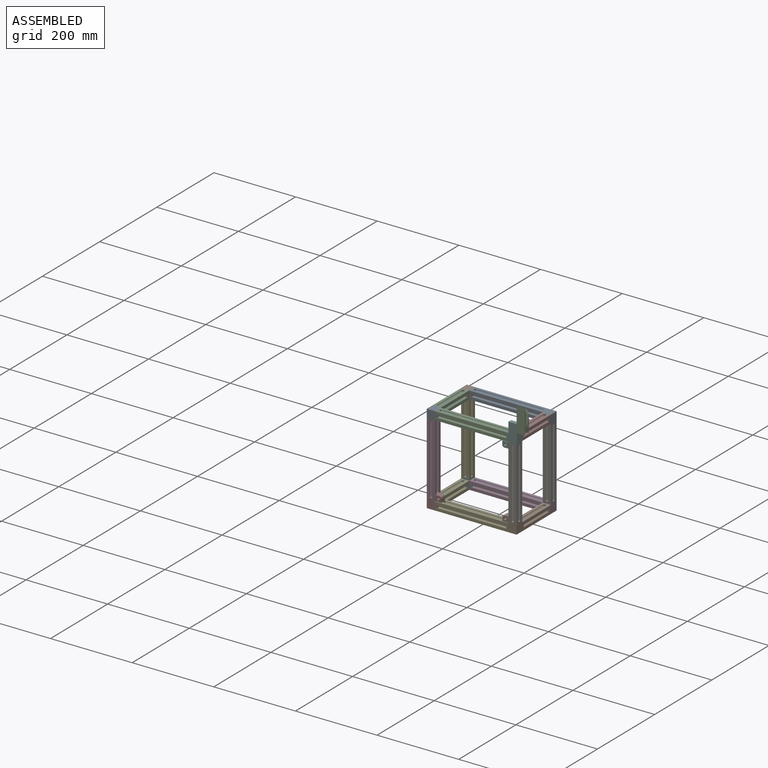
[diagram: assembled view]
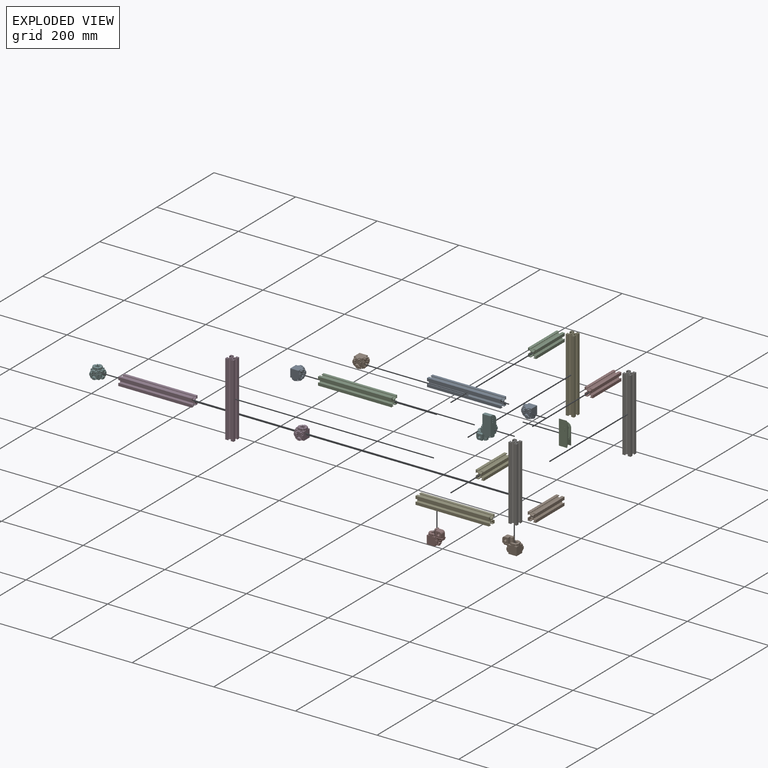
[diagram: exploded view]
GUIDED TOUR — MATED ASSEMBLY WITH SUBASSEMBLIES (Onshape document 5849f3f1650a1f40a9df41c4, AutoMate assembly 5849f3f1650a1f40a9df41c4_9b9f83bd9ccc5ef26c522021_66006c5635cd6fd07002afb1_default)

This assembly has 24 component occurrences arranged in 21 top-level units: 20 individual components plus 1 subassembly (S0). The tour has two levels: first the top level, where each subassembly is treated as one rigid unit; then each subassembly is toured internally in its own section (nesting deeper than one subassembly level is flattened into its subassembly's section).

Components are labeled P0..P23 across the whole record; subassembly units are labeled S0..S0. A mate is a constraint between two units; its type names the relative motion it leaves free:
  FASTENED — locks the two components together rigidly (no relative motion).
Axis/direction vectors are unit vectors and 'through' points are millimeter coordinates, both in the assembly's world frame.

TOP-LEVEL MATES (between units; each subassembly's internal mates are listed in its own section)
  1. FASTENED "Fastened 3": P4 <-> P7, direction (-1.000, 0.000, 0.000) through (-31.31, -10.00, -54.85) mm
  2. FASTENED "Fastened 9": P15 <-> P16, direction (0.000, -1.000, 0.000) through (-31.31, 110.00, 125.15) mm
  3. FASTENED "Fastened 15": P9 <-> P21, direction (1.000, 0.000, 0.000) through (-211.31, -10.00, 145.15) mm
  4. FASTENED "Fastened 11": P17 <-> P16, direction (0.000, -1.000, 0.000) through (-31.31, 110.00, 145.15) mm
  5. FASTENED "Fastened 4": P1 <-> P4, direction (0.000, -1.000, 0.000) through (-31.31, 10.00, -54.85) mm
  6. FASTENED "Fastened 12": P5 <-> P7, direction (0.000, 0.000, -1.000) through (-11.31, 10.00, 125.15) mm
  7. FASTENED "Fastened 17": P3 <-> P22, direction (-1.000, 0.000, 0.000) through (-31.31, 130.00, -74.85) mm
  8. FASTENED "Fastened 19": P18 <-> P17, direction (1.000, 0.000, 0.000) through (-211.31, 130.00, 145.15) mm
  9. FASTENED "Fastened 14": P8 <-> P12, direction (0.000, 0.000, 1.000) through (-231.31, -10.00, -54.85) mm
  10. FASTENED "Fastened 2": P21 <-> P12, direction (1.000, 0.000, 0.000) through (-211.31, -10.00, 125.15) mm
  11. FASTENED "Fastened 7": P4 <-> P23, direction (0.000, 1.000, 0.000) through (-211.31, 10.00, -54.85) mm
  12. FASTENED "Fastened 10": P22 <-> P23, direction (0.000, -1.000, 0.000) through (-211.31, 110.00, -74.85) mm
  13. FASTENED "Fastened 16": S0 <-> P5, direction (1.000, 0.000, 0.000) through (-11.31, -2.50, 167.65) mm
  14. FASTENED "Fastened 6": P11 <-> P21, direction (0.000, -1.000, 0.000) through (-211.31, 10.00, 125.15) mm
  15. FASTENED "Fastened 20": P0 <-> P17, direction (-1.000, 0.000, 0.000) through (-31.31, 130.00, 145.15) mm
  16. FASTENED "Fastened 18": P14 <-> P22, direction (1.000, 0.000, 0.000) through (-211.31, 130.00, -74.85) mm
  17. FASTENED "Fastened 8": P13 <-> P11, direction (0.000, -1.000, 0.000) through (-211.31, 110.00, 125.15) mm
  18. FASTENED "Fastened 1": P21 <-> P7, direction (1.000, 0.000, 0.000) through (-31.31, -10.00, 125.15) mm
  19. FASTENED "Fastened 5": P16 <-> P7, direction (0.000, -1.000, 0.000) through (-31.31, 10.00, 125.15) mm
  20. FASTENED "Fastened 13": P10 <-> P7, direction (0.000, 0.000, 1.000) through (-11.31, -10.00, -54.85) mm

TOP-LEVEL ASSEMBLY ORDER
  1. P7 — the base component [order heuristic]
  2. P4 — core [order heuristic]
  3. P0 — core [order heuristic]
  4. P10 — core [order heuristic]
  5. P16 — core [order heuristic]
  6. P5 — core [order heuristic]
  7. P1 — core [order heuristic]
  8. P17 — core [order heuristic]
  9. P11 — core [order heuristic]
  10. P21 — core [order heuristic]
  11. P15 — core [order heuristic]
  12. P9 — core [order heuristic]
  13. P23 — core [order heuristic]
  14. P18 — core [order heuristic]
  15. P8 — core [order heuristic]
  16. P13 — core [order heuristic]
  17. P12 — core [order heuristic]
  18. P22 — core [order heuristic]
  19. P14 — core [order heuristic]
  20. P3 — core [order heuristic]
  21. S0 [order verified]
Order-tag legend:
  [order verified] — this step's position reverses a verified removal order: the component was checked to insert without passing through the ones already placed.
  [order heuristic] — the first 20 components form the assembly's core: parts whose collision-free extraction could not be verified, listed in mate-graph order.

Of the 24 component occurrences, 15 carry the full construction recipe — the FeatureScript program that regenerates the part's solid from scratch; the rest are supplied as boundary geometry only. Each toured unit is shown spotlighted twice — assembled, then exploded with a leader line back to its socket (green = recipe-attached component, orange = geometry-only, blue = subassembly unit; the rest desaturated gray).
NOTE — this tour is split across 2 documents so each fits a 32k-token context. This is document 1: the component sections continue in the remaining 1 document, each repeating the header above.
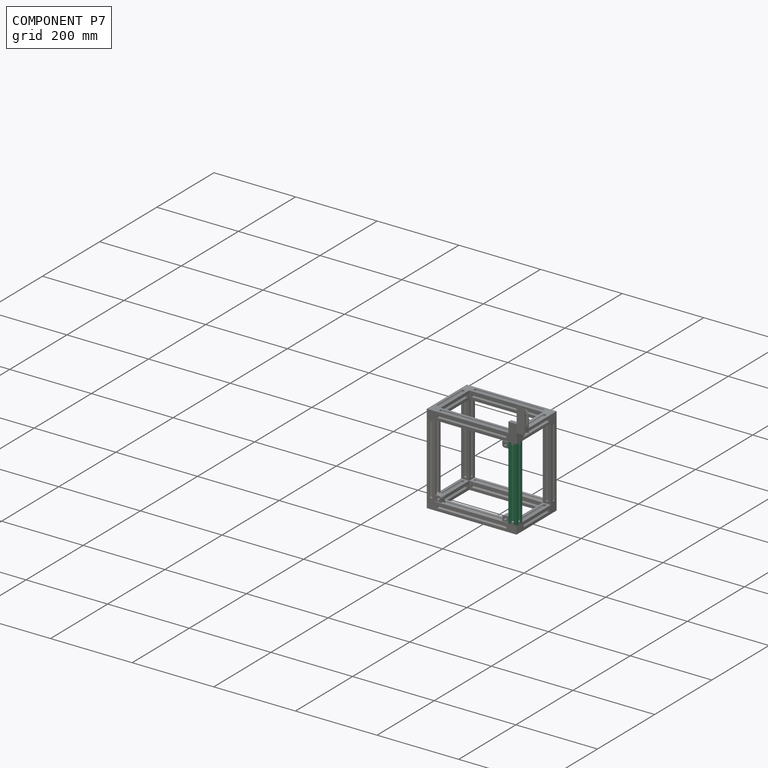
[diagram: component P7 — assembled]
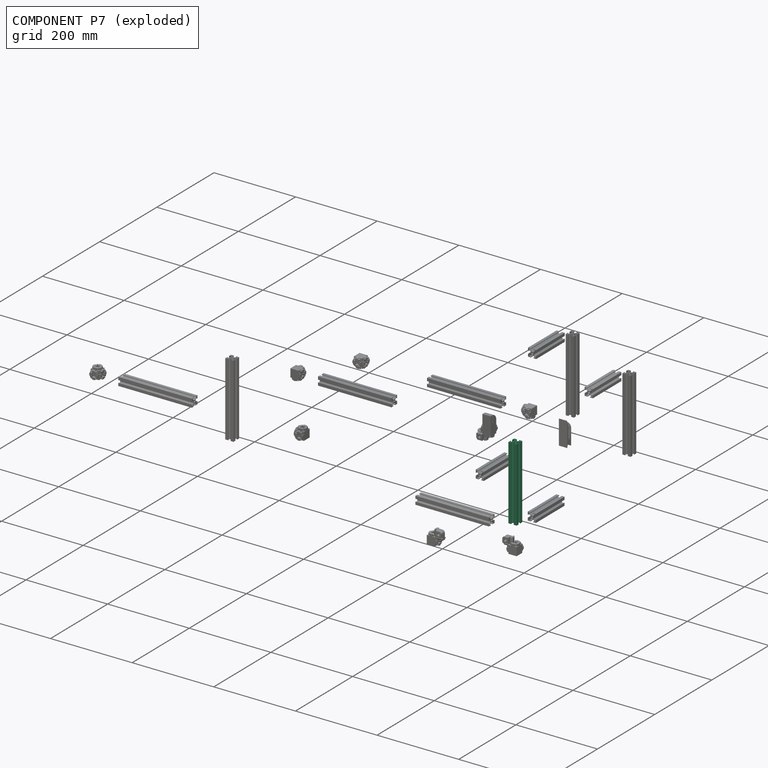
[diagram: component P7 — exploded]
COMPONENT P7 — same part as P4 (CADFS 00642222); its construction recipe is shown at P4.
Held by: FASTENED mate "Fastened 3" to P4; FASTENED mate "Fastened 12" to P5; FASTENED mate "Fastened 1" to P21; FASTENED mate "Fastened 5" to P16; FASTENED mate "Fastened 13" to P10.
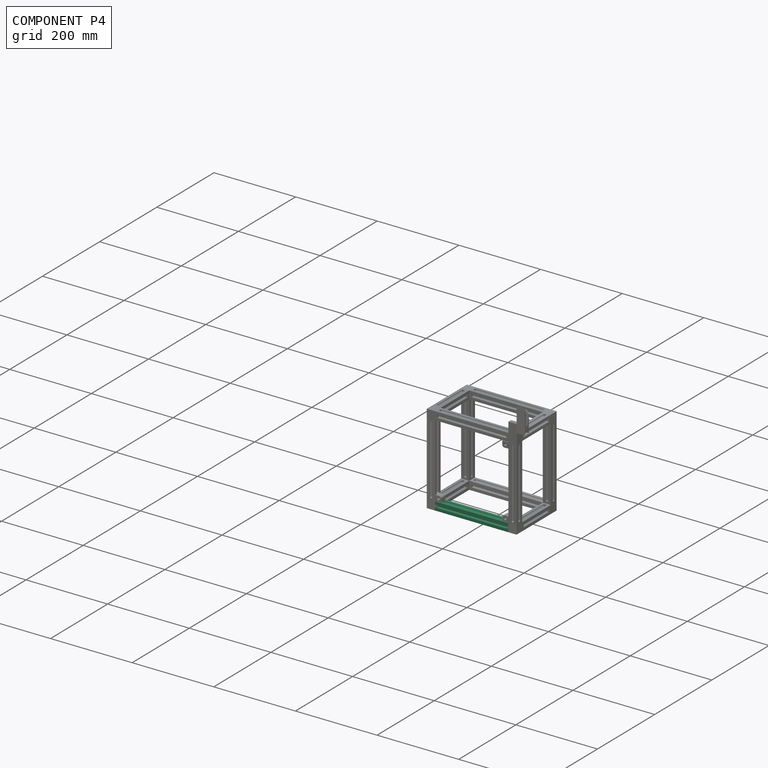
[diagram: component P4 — assembled]
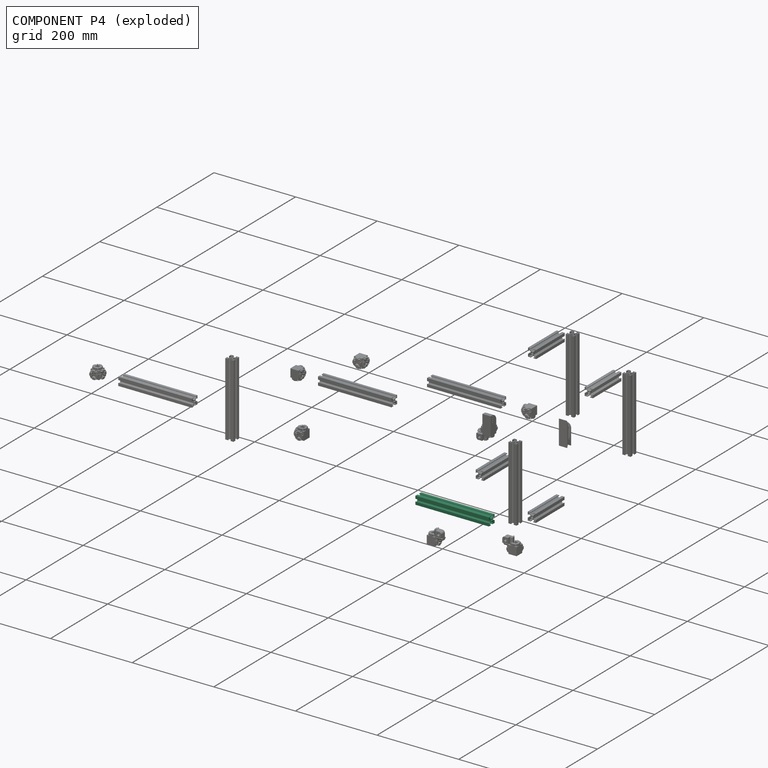
[diagram: component P4 — exploded]
COMPONENT P4 — recipe-attached (CADFS 00642222, mesh-verified: the recipe's output STEP matches this component's geometry to below the mesh-comparison resolution (tessellation chordal tolerance ~0.273 mm)).
Held by: FASTENED mate "Fastened 3" to P7; FASTENED mate "Fastened 4" to P1; FASTENED mate "Fastened 7" to P23.
Construction recipe (FeatureScript — the CAD program that rebuilds this solid; sketch coordinates are in the units given by the * unit suffixes, e.g. mm):

FeatureScript 1511;
import(path : "onshape/std/geometry.fs", version : "1511.0");
import(path : "onshape/std/common.fs", version : "1511.0");
const mm = millimeter;
const VERTEX = EntityType.VERTEX;
const EDGE = EntityType.EDGE;
const FACE = EntityType.FACE;
const BODY = EntityType.BODY;
function v(x, y){return vector(x, y);}
function OD(order){return orderDisambiguation(order);}
function OSD(set){return originalSetDisambiguation(set);}
function TD(topology){return topologyDisambiguation(topology);}
function TDD(query){return trueDependencyDisambiguation(query);}
function sQuery(a, b, c) {return sketchEntityQuery(a, b, c);}

annotation { "Feature Type Name" : "Feature", "Feature Type Description" : "" }
export const myFeature = defineFeature(function(context is Context, id is Id, definition is map)
    precondition{}
    {
        {
            var Q0;
            Q0=qCreatedBy(makeId("Top.planeOp"),FACE);
            var sketch = newSketch(context, id + "F0", { "sketchPlane" : qUnion([Q0])});
            skCircle(sketch, "E0", {"center": v(10, 10) * mm, "radius": 2.5 * mm});
            skLineSegment(sketch, "E1", {"start": v(0, 0) * mm, "end": v(10, 10) * mm, "construction": true});
            skLineSegment(sketch, "E2", {"start": v(1.4, 2.39) * mm, "end": v(1.4, 6.8) * mm});
            skLineSegment(sketch, "E3", {"start": v(1.4, 6.8) * mm, "end": v(0, 6.8) * mm});
            skLineSegment(sketch, "E4", {"start": v(0, 6.8) * mm, "end": v(0, 0) * mm});
            skLineSegment(sketch, "E5", {"start": v(7.49, 6.5) * mm, "end": v(2.39, 1.4) * mm});
            skLineSegment(sketch, "E6", {"start": v(2.39, 1.4) * mm, "end": v(6.8, 1.4) * mm});
            skLineSegment(sketch, "E7", {"start": v(6.8, 1.4) * mm, "end": v(6.8, 0) * mm});
            skLineSegment(sketch, "E8", {"start": v(6.8, 0) * mm, "end": v(0, 0) * mm});
            skLineSegment(sketch, "E9", {"start": v(10, 10) * mm, "end": v(20, 20) * mm, "construction": true});
            skLineSegment(sketch, "E10", {"start": v(10, 10) * mm, "end": v(0, 20) * mm, "construction": true});
            skLineSegment(sketch, "E11", {"start": v(10, 10) * mm, "end": v(20, 0) * mm, "construction": true});
            skLineSegment(sketch, "E12", {"start": v(1.4, 17.61) * mm, "end": v(6.5, 12.51) * mm});
            skLineSegment(sketch, "E13", {"start": v(1.4, 17.61) * mm, "end": v(1.4, 13.2) * mm});
            skLineSegment(sketch, "E14", {"start": v(1.4, 13.2) * mm, "end": v(0, 13.2) * mm});
            skLineSegment(sketch, "E15", {"start": v(0, 13.2) * mm, "end": v(0, 20) * mm});
            skLineSegment(sketch, "E16", {"start": v(7.49, 13.5) * mm, "end": v(2.39, 18.6) * mm});
            skLineSegment(sketch, "E17", {"start": v(2.39, 18.6) * mm, "end": v(6.8, 18.6) * mm});
            skLineSegment(sketch, "E18", {"start": v(6.8, 18.6) * mm, "end": v(6.8, 20) * mm});
            skLineSegment(sketch, "E19", {"start": v(6.8, 20) * mm, "end": v(0, 20) * mm});
            skLineSegment(sketch, "E20", {"start": v(12.51, 13.5) * mm, "end": v(17.61, 18.6) * mm});
            skLineSegment(sketch, "E21", {"start": v(17.61, 18.6) * mm, "end": v(13.2, 18.6) * mm});
            skLineSegment(sketch, "E22", {"start": v(13.2, 18.6) * mm, "end": v(13.2, 20) * mm});
            skLineSegment(sketch, "E23", {"start": v(13.2, 20) * mm, "end": v(20, 20) * mm});
            skLineSegment(sketch, "E24", {"start": v(13.5, 12.51) * mm, "end": v(18.6, 17.61) * mm});
            skLineSegment(sketch, "E25", {"start": v(18.6, 17.61) * mm, "end": v(18.6, 13.2) * mm});
            skLineSegment(sketch, "E26", {"start": v(18.6, 13.2) * mm, "end": v(20, 13.2) * mm});
            skLineSegment(sketch, "E27", {"start": v(20, 13.2) * mm, "end": v(20, 20) * mm});
            skLineSegment(sketch, "E28", {"start": v(18.6, 2.39) * mm, "end": v(18.6, 6.8) * mm});
            skLineSegment(sketch, "E29", {"start": v(18.6, 6.8) * mm, "end": v(20, 6.8) * mm});
            skLineSegment(sketch, "E30", {"start": v(20, 6.8) * mm, "end": v(20, 0) * mm});
            skLineSegment(sketch, "E31", {"start": v(12.51, 6.5) * mm, "end": v(17.61, 1.4) * mm});
            skLineSegment(sketch, "E32", {"start": v(17.61, 1.4) * mm, "end": v(13.2, 1.4) * mm});
            skLineSegment(sketch, "E33", {"start": v(13.2, 1.4) * mm, "end": v(13.2, 0) * mm});
            skLineSegment(sketch, "E34", {"start": v(13.2, 0) * mm, "end": v(20, 0) * mm});
            skLineSegment(sketch, "E35", {"start": v(12.51, 6.5) * mm, "end": v(7.49, 6.5) * mm});
            skLineSegment(sketch, "E36", {"start": v(7.49, 13.5) * mm, "end": v(12.51, 13.5) * mm});
            skLineSegment(sketch, "E37", {"start": v(10, 10) * mm, "end": v(10, 0) * mm, "construction": true});
            skLineSegment(sketch, "E38", {"start": v(10, 10) * mm, "end": v(18.77, 10) * mm, "construction": true});
            skLineSegment(sketch, "E39", {"start": v(10, 10) * mm, "end": v(10, 20.74) * mm, "construction": true});
            skLineSegment(sketch, "E40", {"start": v(10, 10) * mm, "end": v(0, 10) * mm, "construction": true});
            skLineSegment(sketch, "E41.bottom", {"start": v(0, 0) * mm, "end": v(20, 0) * mm, "construction": true});
            skLineSegment(sketch, "E41.top", {"start": v(0, 20) * mm, "end": v(20, 20) * mm, "construction": true});
            skLineSegment(sketch, "E41.left", {"start": v(0, 0) * mm, "end": v(0, 20) * mm, "construction": true});
            skLineSegment(sketch, "E41.right", {"start": v(20, 0) * mm, "end": v(20, 20) * mm, "construction": true});
            skLineSegment(sketch, "E42", {"start": v(18.6, 2.39) * mm, "end": v(13.5, 7.49) * mm});
            skLineSegment(sketch, "E43", {"start": v(13.5, 7.49) * mm, "end": v(13.5, 12.51) * mm});
            skLineSegment(sketch, "E44", {"start": v(1.4, 2.39) * mm, "end": v(6.5, 7.62) * mm});
            skLineSegment(sketch, "E45", {"start": v(6.5, 7.62) * mm, "end": v(6.5, 12.51) * mm});
            skSolve(sketch);
        }
        {
            var Q0;
            Q0=makeQuery(id+"F0.imprint","IMPRINT",FACE,{"disambiguationData":[TD([[makeQuery(id+"F0.imprint","IMPRINT",EDGE,{"derivedFrom":sQuery(id+"F0.wireOp",EDGE,"E0")}),-1.0]])]});
            extrude(context, id + "F1", {"entities" : qUnion([Q0]), "depth" : 180 * mm, "offsetDistance" : 25 * mm});
        }
    });
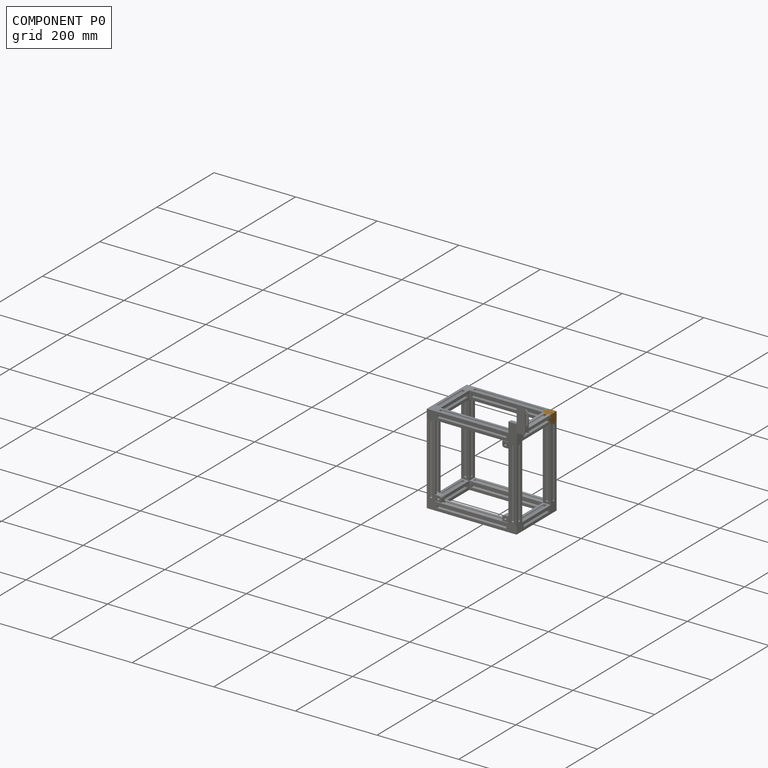
[diagram: component P0 — assembled]
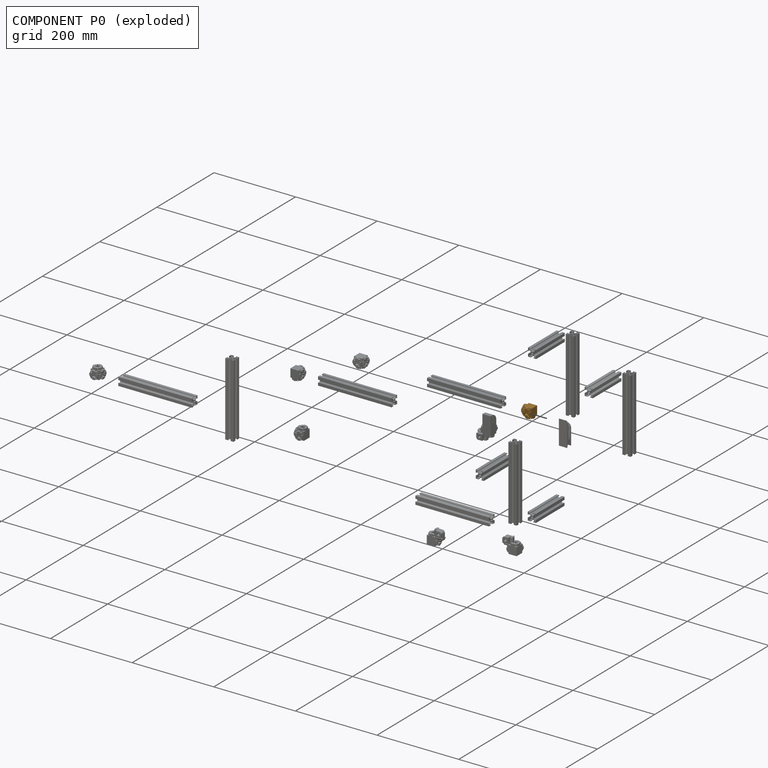
[diagram: component P0 — exploded]
COMPONENT P0 — geometry summary (no construction recipe available for this part):
  bounding box: 25.0 x 25.0 x 25.0 mm
  B-rep topology: 1 solid, 291 faces, 1420 edges
  volume: 11254 mm^3 (72% of its bounding box)
Held by: FASTENED mate "Fastened 20" to P17.
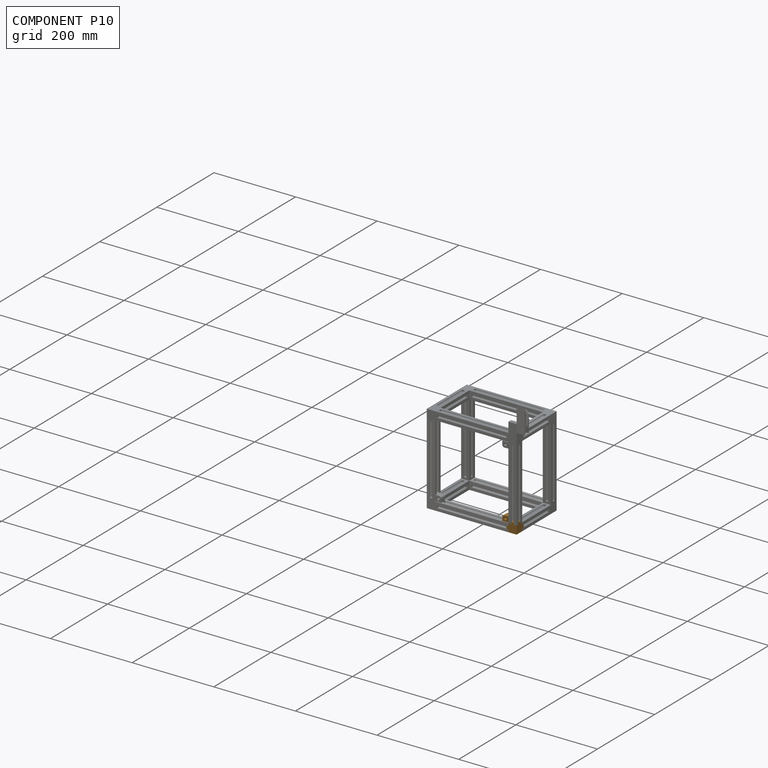
[diagram: component P10 — assembled]
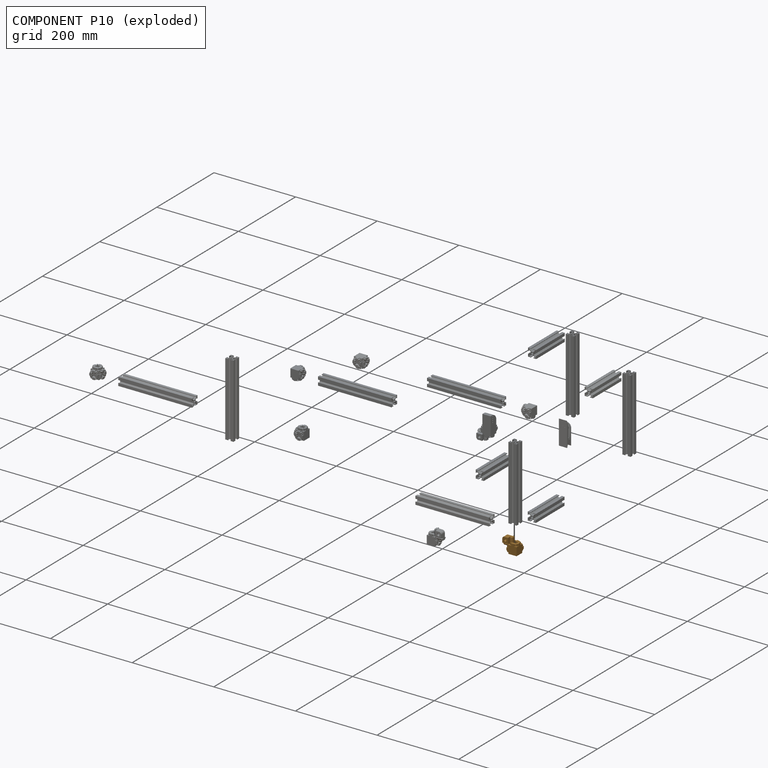
[diagram: component P10 — exploded]
COMPONENT P10 — geometry summary (no construction recipe available for this part):
  bounding box: 35.0 x 35.0 x 25.0 mm
  B-rep topology: 1 solid, 282 faces, 1408 edges
  volume: 14687 mm^3 (48% of its bounding box)
Held by: FASTENED mate "Fastened 13" to P7.
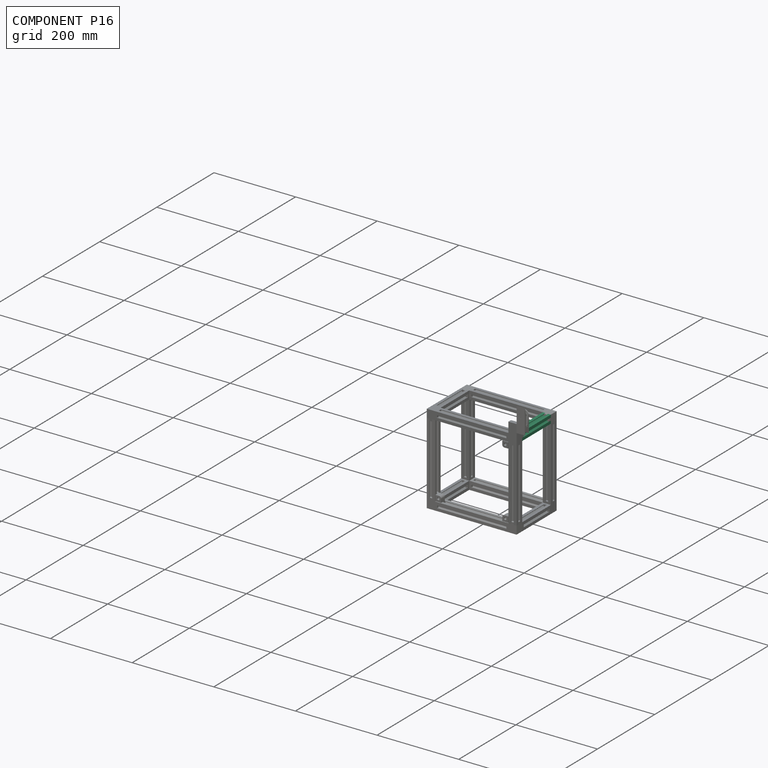
[diagram: component P16 — assembled]
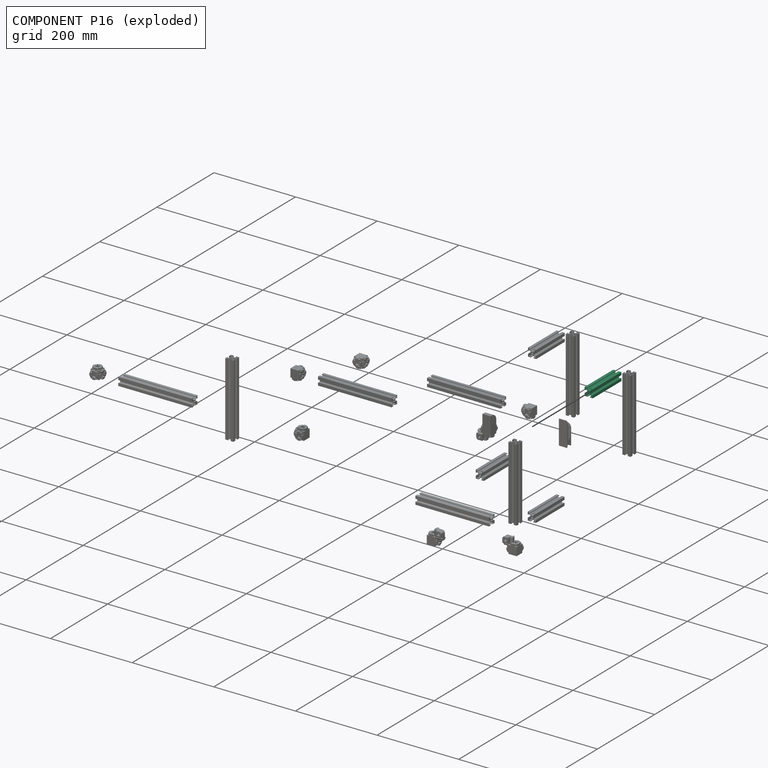
[diagram: component P16 — exploded]
COMPONENT P16 — same part as P1 (CADFS 00642223); its construction recipe is shown at P1.
Held by: FASTENED mate "Fastened 9" to P15; FASTENED mate "Fastened 11" to P17; FASTENED mate "Fastened 5" to P7.
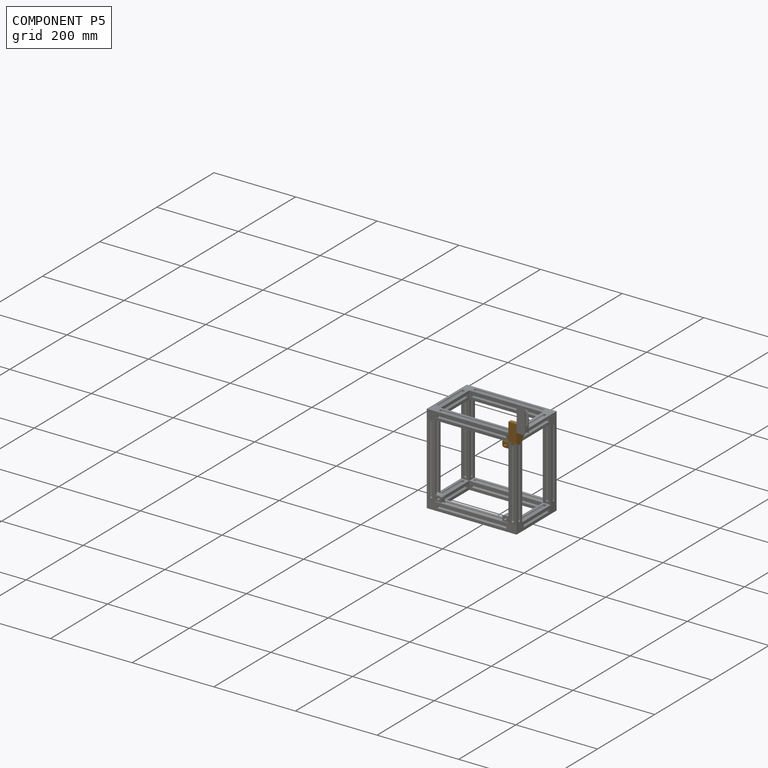
[diagram: component P5 — assembled]
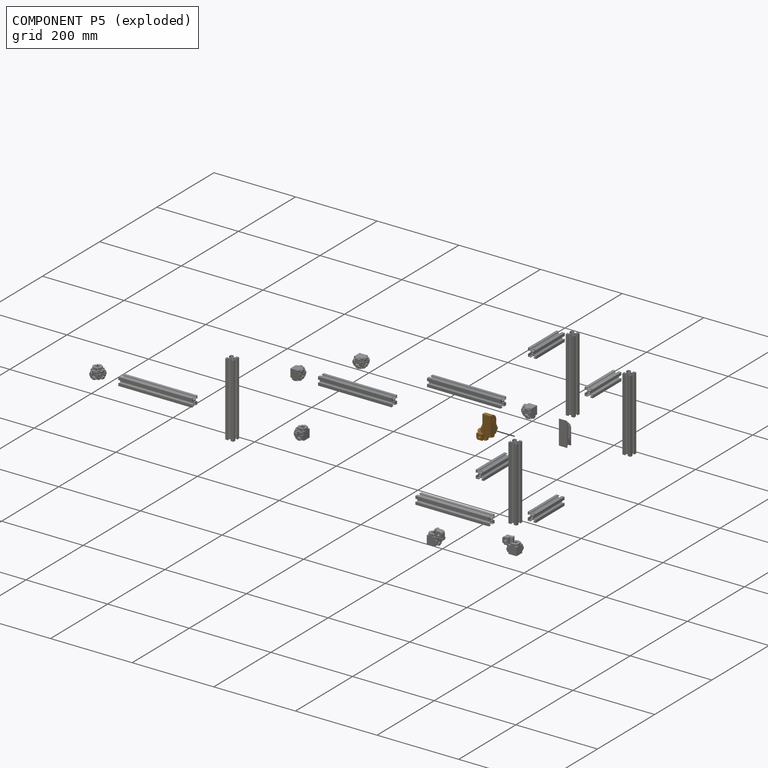
[diagram: component P5 — exploded]
COMPONENT P5 — geometry summary (no construction recipe available for this part):
  bounding box: 60.0 x 35.0 x 25.0 mm
  B-rep topology: 1 solid, 289 faces, 1472 edges
  volume: 23470 mm^3 (45% of its bounding box)
Held by: FASTENED mate "Fastened 12" to P7; FASTENED mate "Fastened 16" to P2.
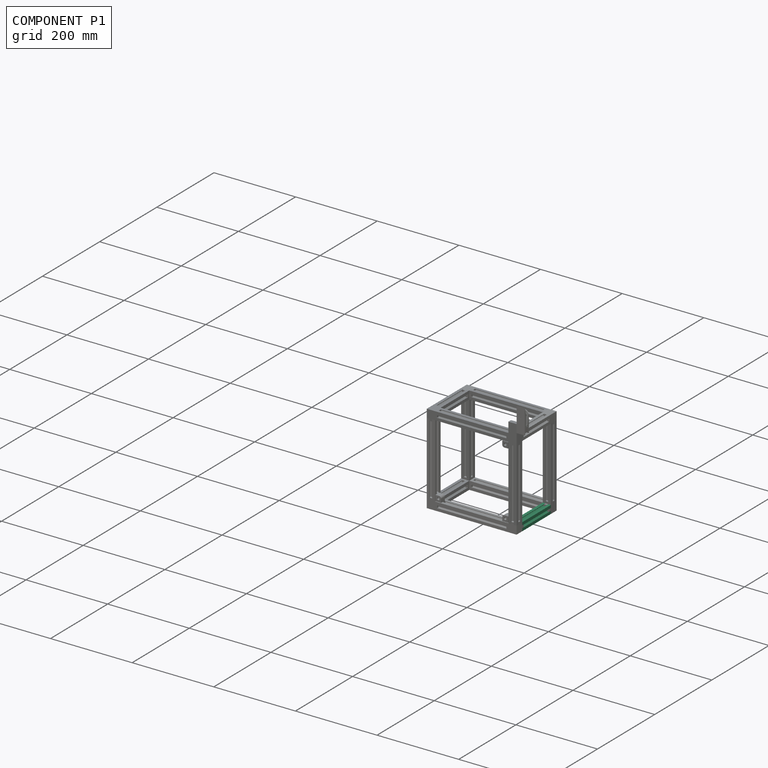
[diagram: component P1 — assembled]
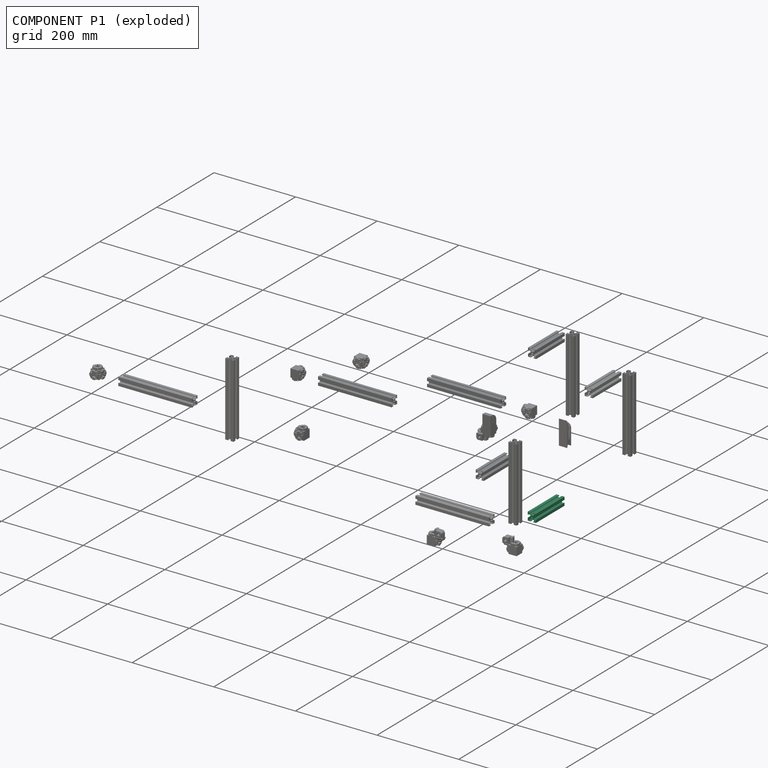
[diagram: component P1 — exploded]
COMPONENT P1 — recipe-attached (CADFS 00642223, mesh-verified: the recipe's output STEP matches this component's geometry to below the mesh-comparison resolution (tessellation chordal tolerance ~0.156 mm)).
Held by: FASTENED mate "Fastened 4" to P4.
Construction recipe (FeatureScript — the CAD program that rebuilds this solid; sketch coordinates are in the units given by the * unit suffixes, e.g. mm):

FeatureScript 1511;
import(path : "onshape/std/geometry.fs", version : "1511.0");
import(path : "onshape/std/common.fs", version : "1511.0");
const mm = millimeter;
const VERTEX = EntityType.VERTEX;
const EDGE = EntityType.EDGE;
const FACE = EntityType.FACE;
const BODY = EntityType.BODY;
function v(x, y){return vector(x, y);}
function OD(order){return orderDisambiguation(order);}
function OSD(set){return originalSetDisambiguation(set);}
function TD(topology){return topologyDisambiguation(topology);}
function TDD(query){return trueDependencyDisambiguation(query);}
function sQuery(a, b, c) {return sketchEntityQuery(a, b, c);}

annotation { "Feature Type Name" : "Feature", "Feature Type Description" : "" }
export const myFeature = defineFeature(function(context is Context, id is Id, definition is map)
    precondition{}
    {
        {
            var Q0;
            Q0=qCreatedBy(makeId("Top.planeOp"),FACE);
            var sketch = newSketch(context, id + "F0", { "sketchPlane" : qUnion([Q0])});
            skCircle(sketch, "E0", {"center": v(10, 10) * mm, "radius": 2.5 * mm});
            skLineSegment(sketch, "E1", {"start": v(0, 0) * mm, "end": v(10, 10) * mm, "construction": true});
            skLineSegment(sketch, "E2", {"start": v(1.4, 2.39) * mm, "end": v(1.4, 6.8) * mm});
            skLineSegment(sketch, "E3", {"start": v(1.4, 6.8) * mm, "end": v(0, 6.8) * mm});
            skLineSegment(sketch, "E4", {"start": v(0, 6.8) * mm, "end": v(0, 0) * mm});
            skLineSegment(sketch, "E5", {"start": v(7.49, 6.5) * mm, "end": v(2.39, 1.4) * mm});
            skLineSegment(sketch, "E6", {"start": v(2.39, 1.4) * mm, "end": v(6.8, 1.4) * mm});
            skLineSegment(sketch, "E7", {"start": v(6.8, 1.4) * mm, "end": v(6.8, 0) * mm});
            skLineSegment(sketch, "E8", {"start": v(6.8, 0) * mm, "end": v(0, 0) * mm});
            skLineSegment(sketch, "E9", {"start": v(10, 10) * mm, "end": v(20, 20) * mm, "construction": true});
            skLineSegment(sketch, "E10", {"start": v(10, 10) * mm, "end": v(0, 20) * mm, "construction": true});
            skLineSegment(sketch, "E11", {"start": v(10, 10) * mm, "end": v(20, 0) * mm, "construction": true});
            skLineSegment(sketch, "E12", {"start": v(1.4, 17.61) * mm, "end": v(6.5, 12.51) * mm});
            skLineSegment(sketch, "E13", {"start": v(1.4, 17.61) * mm, "end": v(1.4, 13.2) * mm});
            skLineSegment(sketch, "E14", {"start": v(1.4, 13.2) * mm, "end": v(0, 13.2) * mm});
            skLineSegment(sketch, "E15", {"start": v(0, 13.2) * mm, "end": v(0, 20) * mm});
            skLineSegment(sketch, "E16", {"start": v(7.49, 13.5) * mm, "end": v(2.39, 18.6) * mm});
            skLineSegment(sketch, "E17", {"start": v(2.39, 18.6) * mm, "end": v(6.8, 18.6) * mm});
            skLineSegment(sketch, "E18", {"start": v(6.8, 18.6) * mm, "end": v(6.8, 20) * mm});
            skLineSegment(sketch, "E19", {"start": v(6.8, 20) * mm, "end": v(0, 20) * mm});
            skLineSegment(sketch, "E20", {"start": v(12.51, 13.5) * mm, "end": v(17.61, 18.6) * mm});
            skLineSegment(sketch, "E21", {"start": v(17.61, 18.6) * mm, "end": v(13.2, 18.6) * mm});
            skLineSegment(sketch, "E22", {"start": v(13.2, 18.6) * mm, "end": v(13.2, 20) * mm});
            skLineSegment(sketch, "E23", {"start": v(13.2, 20) * mm, "end": v(20, 20) * mm});
            skLineSegment(sketch, "E24", {"start": v(13.5, 12.51) * mm, "end": v(18.6, 17.61) * mm});
            skLineSegment(sketch, "E25", {"start": v(18.6, 17.61) * mm, "end": v(18.6, 13.2) * mm});
            skLineSegment(sketch, "E26", {"start": v(18.6, 13.2) * mm, "end": v(20, 13.2) * mm});
            skLineSegment(sketch, "E27", {"start": v(20, 13.2) * mm, "end": v(20, 20) * mm});
            skLineSegment(sketch, "E28", {"start": v(18.6, 2.39) * mm, "end": v(18.6, 6.8) * mm});
            skLineSegment(sketch, "E29", {"start": v(18.6, 6.8) * mm, "end": v(20, 6.8) * mm});
            skLineSegment(sketch, "E30", {"start": v(20, 6.8) * mm, "end": v(20, 0) * mm});
            skLineSegment(sketch, "E31", {"start": v(12.51, 6.5) * mm, "end": v(17.61, 1.4) * mm});
            skLineSegment(sketch, "E32", {"start": v(17.61, 1.4) * mm, "end": v(13.2, 1.4) * mm});
            skLineSegment(sketch, "E33", {"start": v(13.2, 1.4) * mm, "end": v(13.2, 0) * mm});
            skLineSegment(sketch, "E34", {"start": v(13.2, 0) * mm, "end": v(20, 0) * mm});
            skLineSegment(sketch, "E35", {"start": v(12.51, 6.5) * mm, "end": v(7.49, 6.5) * mm});
            skLineSegment(sketch, "E36", {"start": v(7.49, 13.5) * mm, "end": v(12.51, 13.5) * mm});
            skLineSegment(sketch, "E37", {"start": v(10, 10) * mm, "end": v(10, 0) * mm, "construction": true});
            skLineSegment(sketch, "E38", {"start": v(10, 10) * mm, "end": v(18.77, 10) * mm, "construction": true});
            skLineSegment(sketch, "E39", {"start": v(10, 10) * mm, "end": v(10, 20.74) * mm, "construction": true});
            skLineSegment(sketch, "E40", {"start": v(10, 10) * mm, "end": v(0, 10) * mm, "construction": true});
            skLineSegment(sketch, "E41.bottom", {"start": v(0, 0) * mm, "end": v(20, 0) * mm, "construction": true});
            skLineSegment(sketch, "E41.top", {"start": v(0, 20) * mm, "end": v(20, 20) * mm, "construction": true});
            skLineSegment(sketch, "E41.left", {"start": v(0, 0) * mm, "end": v(0, 20) * mm, "construction": true});
            skLineSegment(sketch, "E41.right", {"start": v(20, 0) * mm, "end": v(20, 20) * mm, "construction": true});
            skLineSegment(sketch, "E42", {"start": v(18.6, 2.39) * mm, "end": v(13.5, 7.49) * mm});
            skLineSegment(sketch, "E43", {"start": v(13.5, 7.49) * mm, "end": v(13.5, 12.51) * mm});
            skLineSegment(sketch, "E44", {"start": v(1.4, 2.39) * mm, "end": v(6.5, 7.62) * mm});
            skLineSegment(sketch, "E45", {"start": v(6.5, 7.62) * mm, "end": v(6.5, 12.51) * mm});
            skSolve(sketch);
        }
        {
            var Q0;
            Q0=makeQuery(id+"F0.imprint","IMPRINT",FACE,{"disambiguationData":[TD([[makeQuery(id+"F0.imprint","IMPRINT",EDGE,{"derivedFrom":sQuery(id+"F0.wireOp",EDGE,"E0")}),-1.0]])]});
            extrude(context, id + "F1", {"entities" : qUnion([Q0]), "depth" : 100 * mm, "offsetDistance" : 25 * mm});
        }
    });
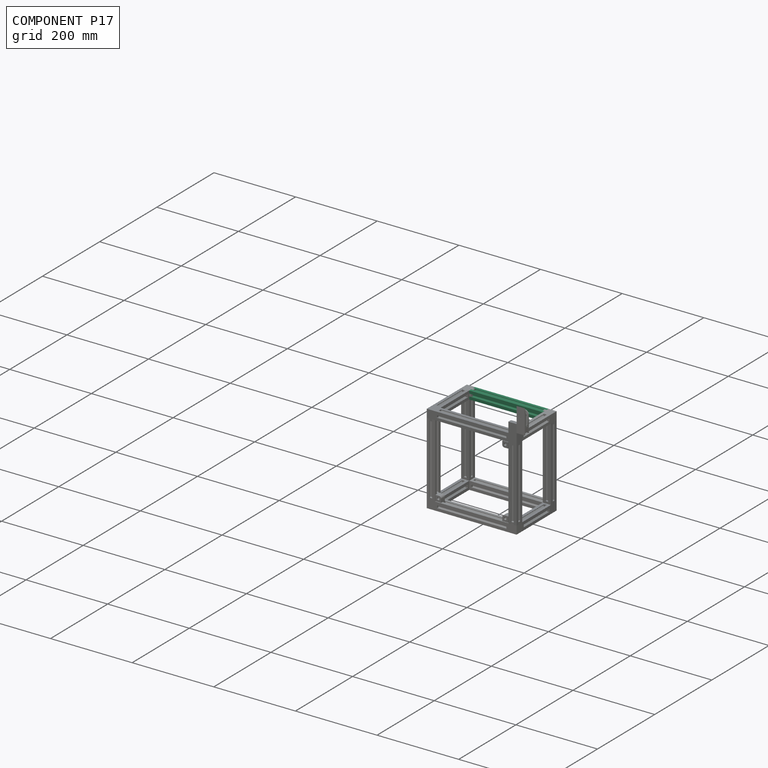
[diagram: component P17 — assembled]
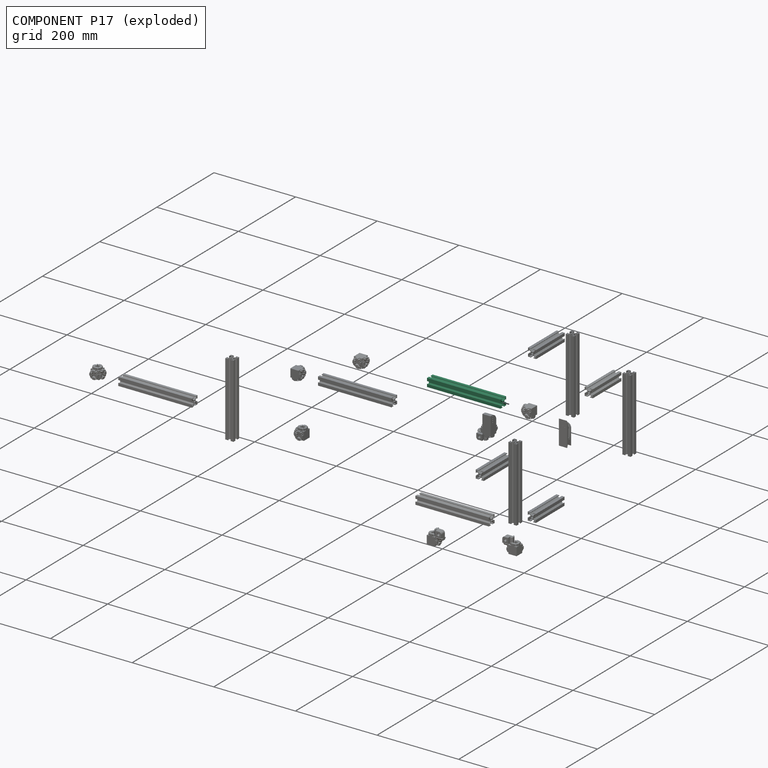
[diagram: component P17 — exploded]
COMPONENT P17 — same part as P4 (CADFS 00642222); its construction recipe is shown at P4.
Held by: FASTENED mate "Fastened 11" to P16; FASTENED mate "Fastened 19" to P18; FASTENED mate "Fastened 20" to P0.
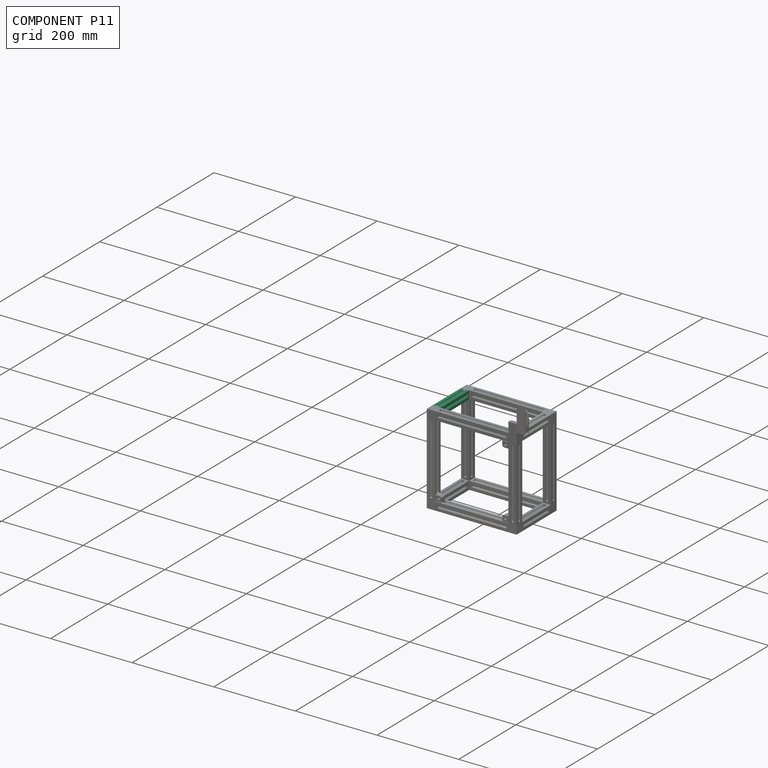
[diagram: component P11 — assembled]
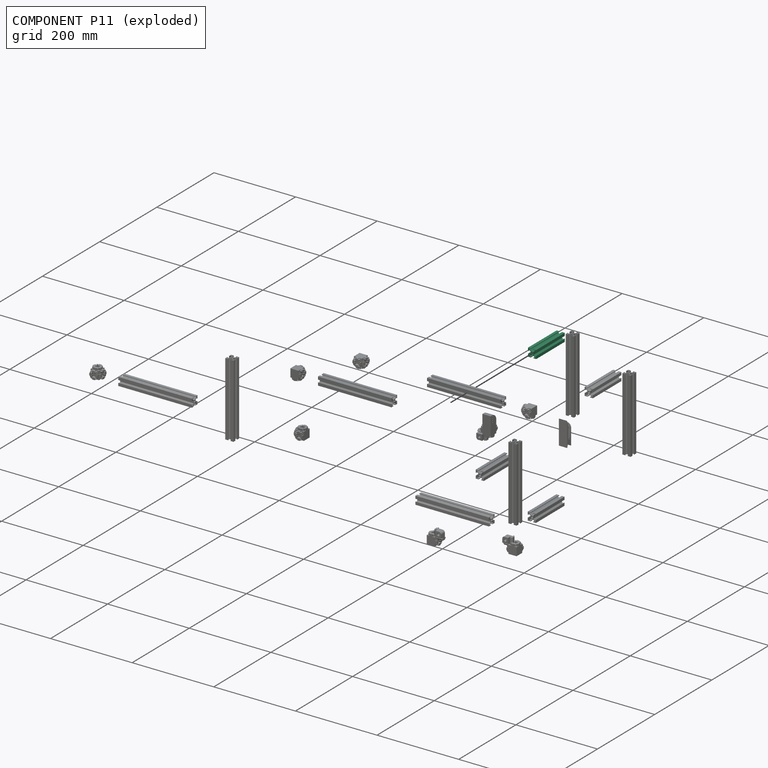
[diagram: component P11 — exploded]
COMPONENT P11 — same part as P1 (CADFS 00642223); its construction recipe is shown at P1.
Held by: FASTENED mate "Fastened 6" to P21; FASTENED mate "Fastened 8" to P13.
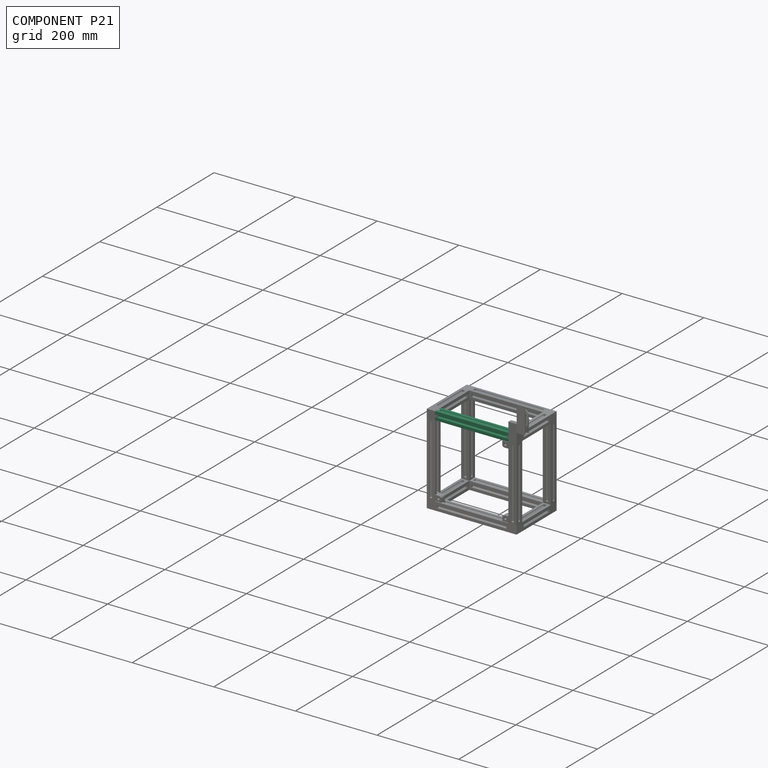
[diagram: component P21 — assembled]
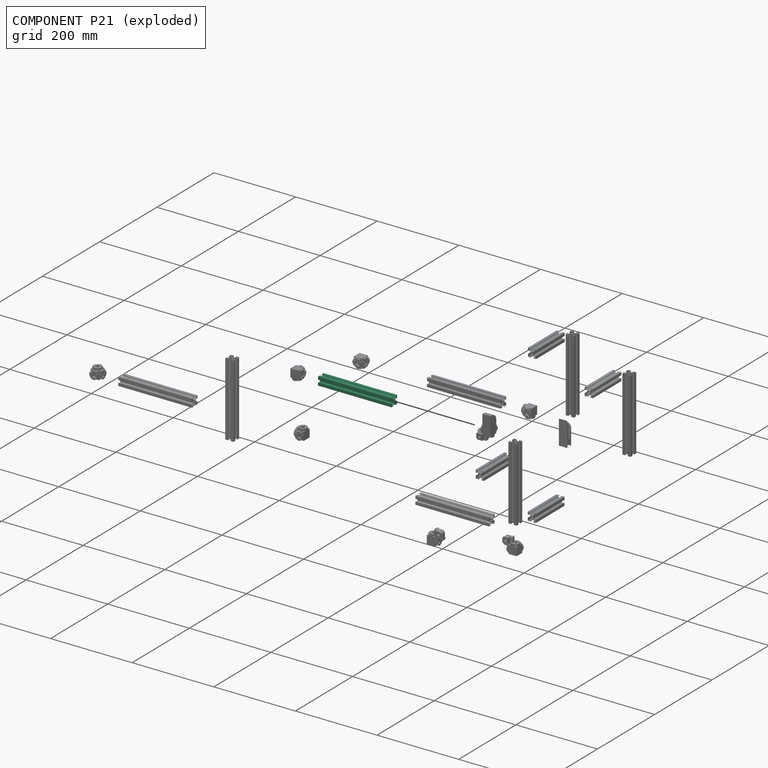
[diagram: component P21 — exploded]
COMPONENT P21 — same part as P4 (CADFS 00642222); its construction recipe is shown at P4.
Held by: FASTENED mate "Fastened 15" to P9; FASTENED mate "Fastened 2" to P12; FASTENED mate "Fastened 6" to P11; FASTENED mate "Fastened 1" to P7.
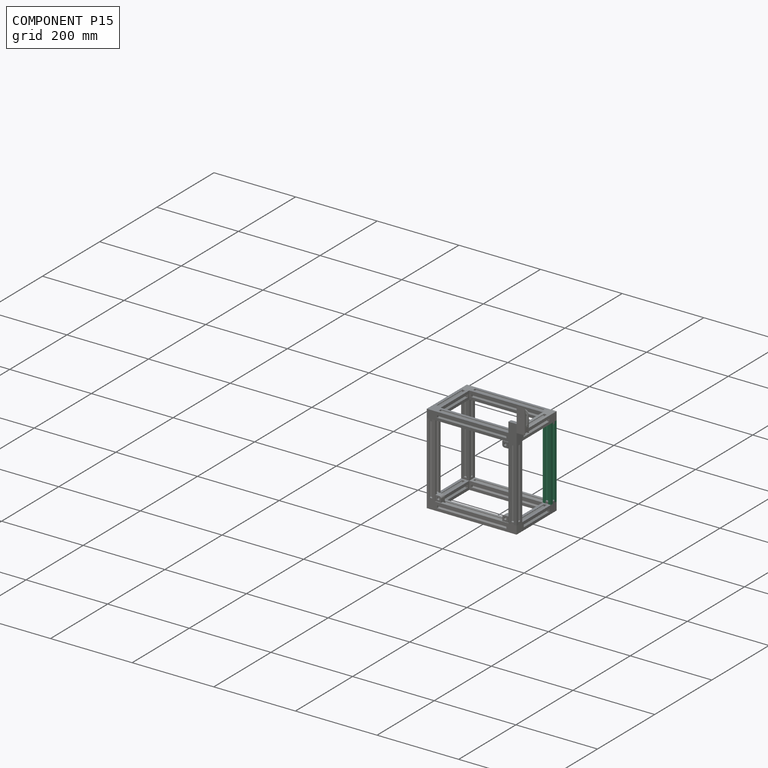
[diagram: component P15 — assembled]
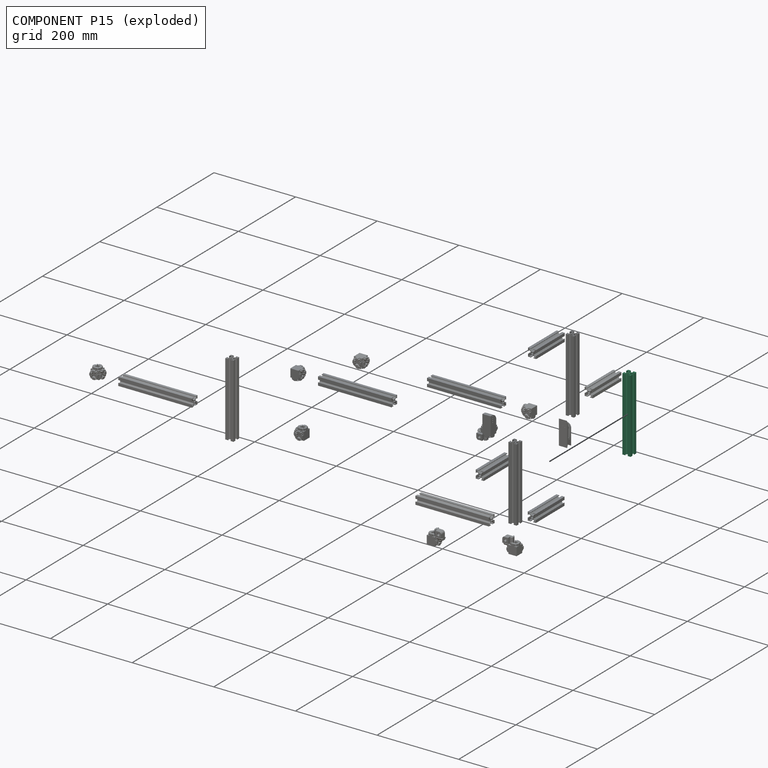
[diagram: component P15 — exploded]
COMPONENT P15 — same part as P4 (CADFS 00642222); its construction recipe is shown at P4.
Held by: FASTENED mate "Fastened 9" to P16.
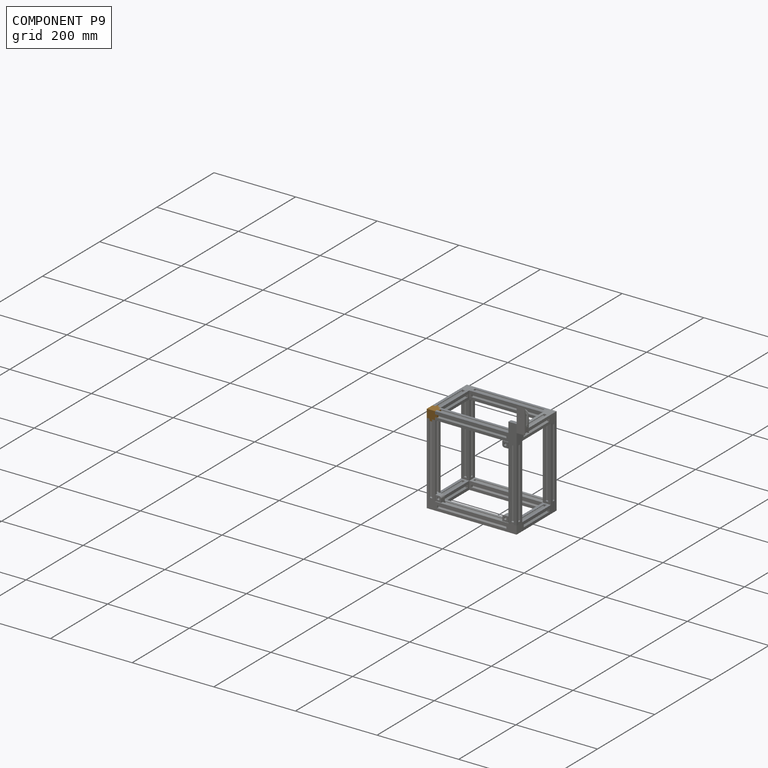
[diagram: component P9 — assembled]
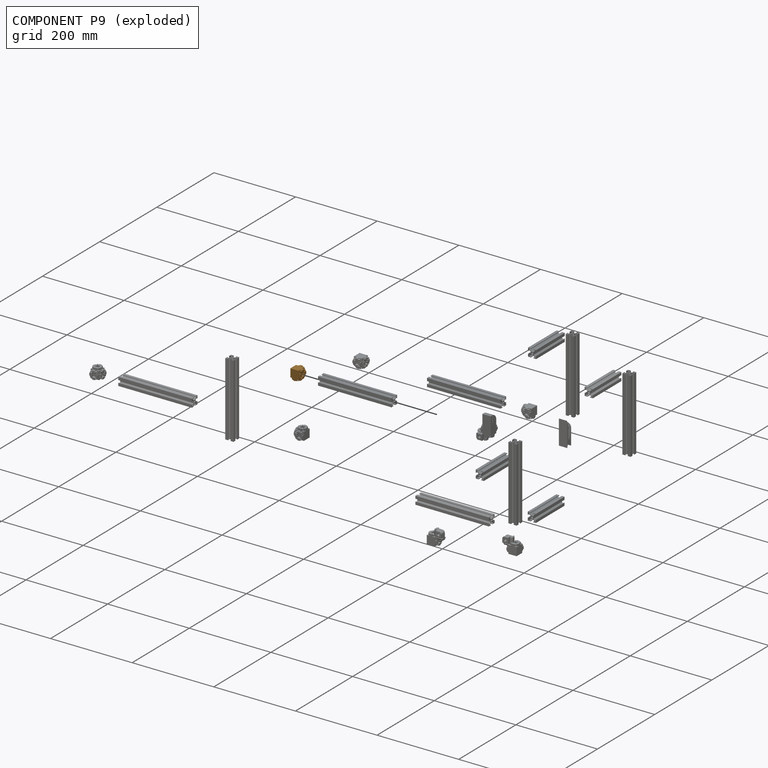
[diagram: component P9 — exploded]
COMPONENT P9 — geometry summary (no construction recipe available for this part):
  bounding box: 25.0 x 25.0 x 25.0 mm
  B-rep topology: 1 solid, 291 faces, 1420 edges
  volume: 11254 mm^3 (72% of its bounding box)
Held by: FASTENED mate "Fastened 15" to P21.
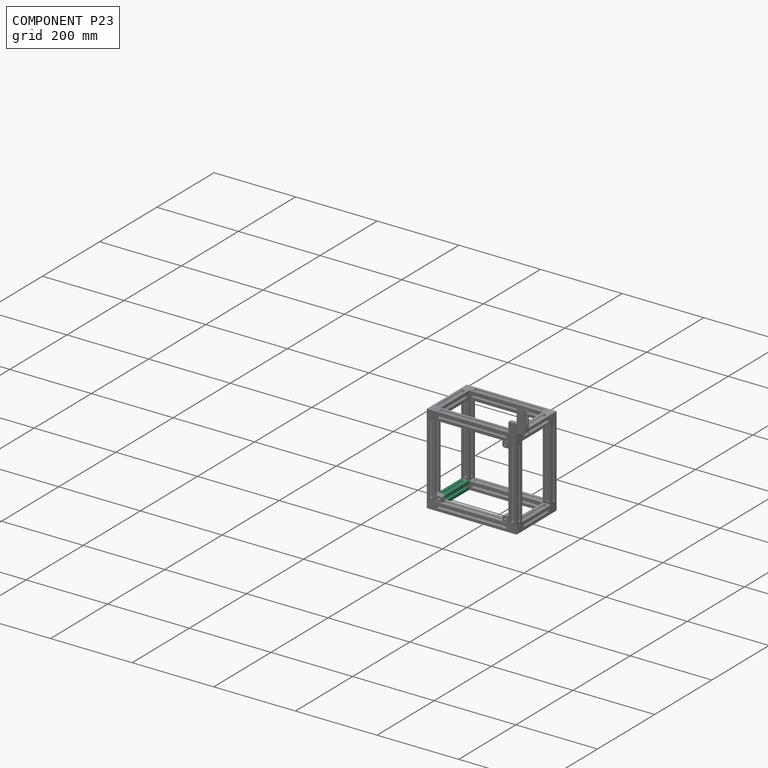
[diagram: component P23 — assembled]
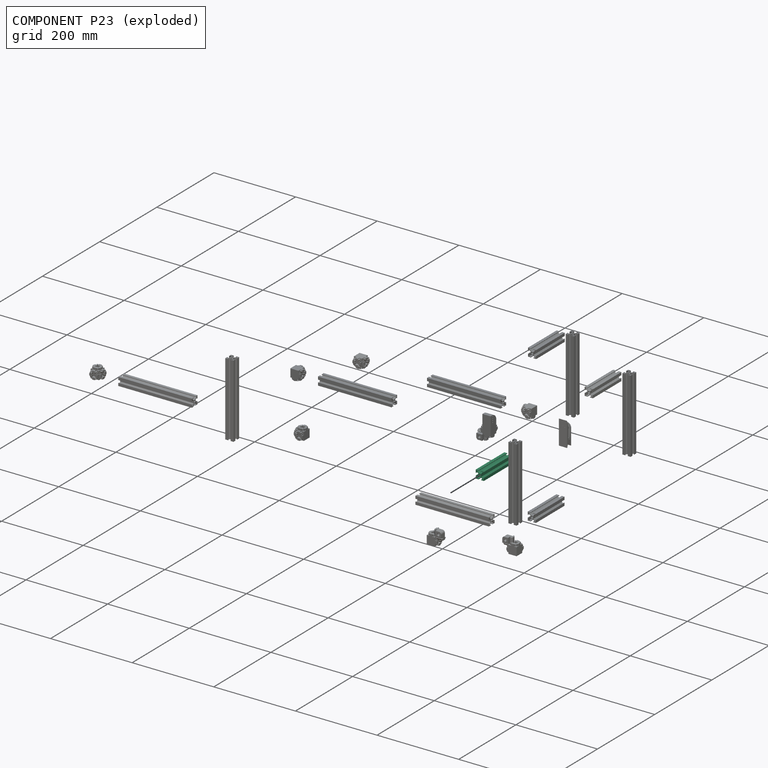
[diagram: component P23 — exploded]
COMPONENT P23 — same part as P1 (CADFS 00642223); its construction recipe is shown at P1.
Held by: FASTENED mate "Fastened 7" to P4; FASTENED mate "Fastened 10" to P22.
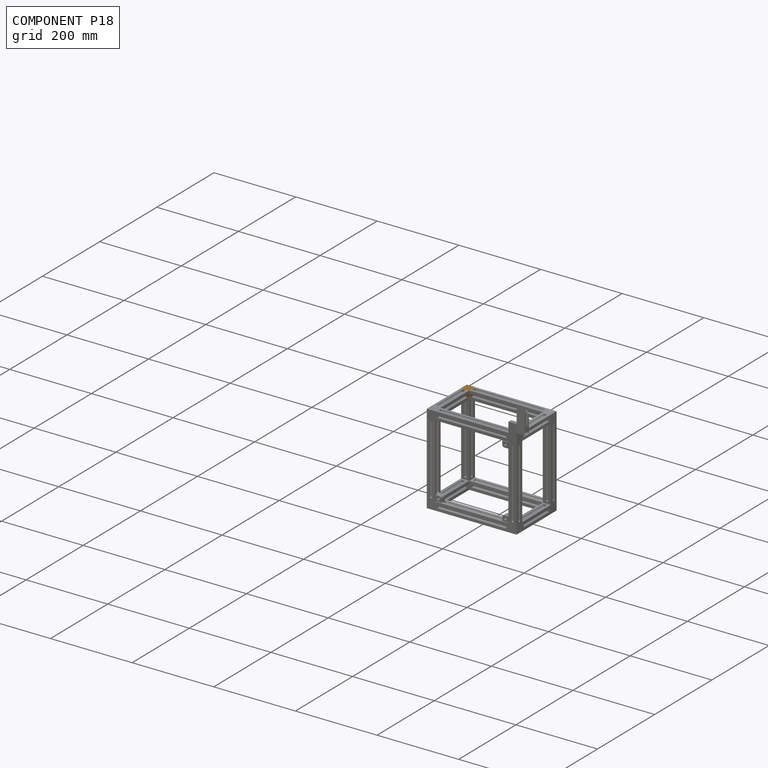
[diagram: component P18 — assembled]
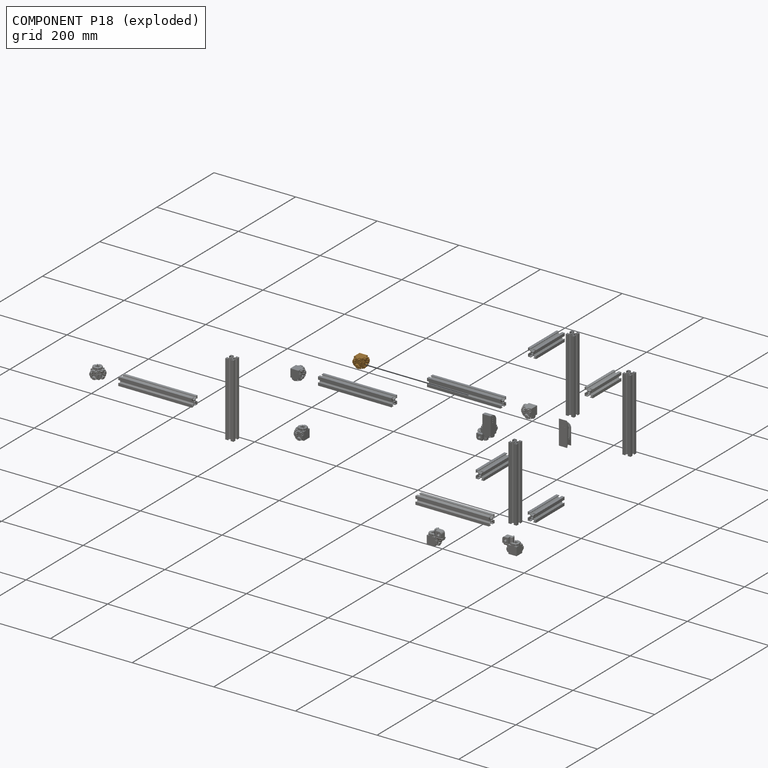
[diagram: component P18 — exploded]
COMPONENT P18 — geometry summary (no construction recipe available for this part):
  bounding box: 25.0 x 25.0 x 25.0 mm
  B-rep topology: 1 solid, 291 faces, 1420 edges
  volume: 11254 mm^3 (72% of its bounding box)
Held by: FASTENED mate "Fastened 19" to P17.
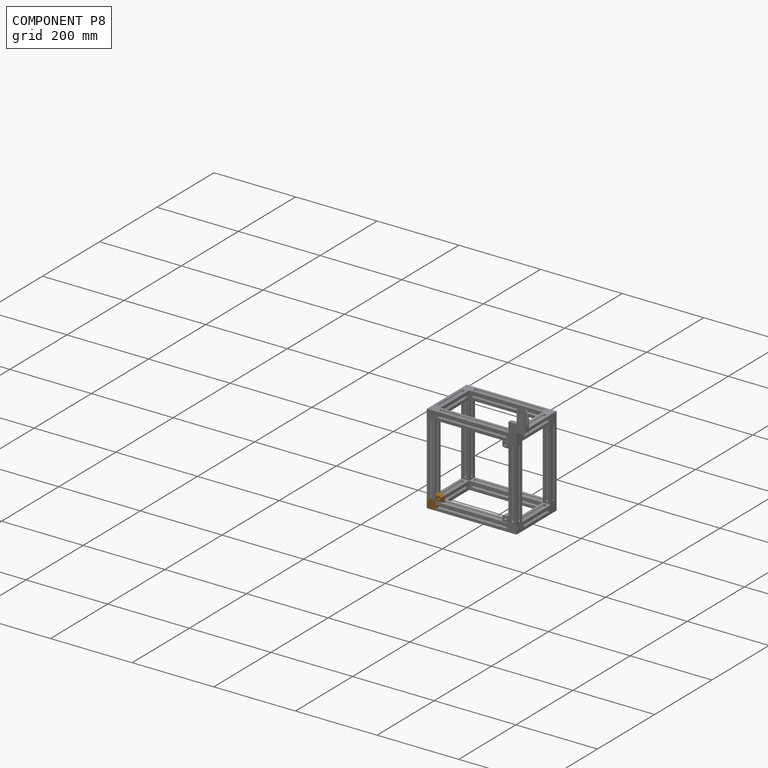
[diagram: component P8 — assembled]
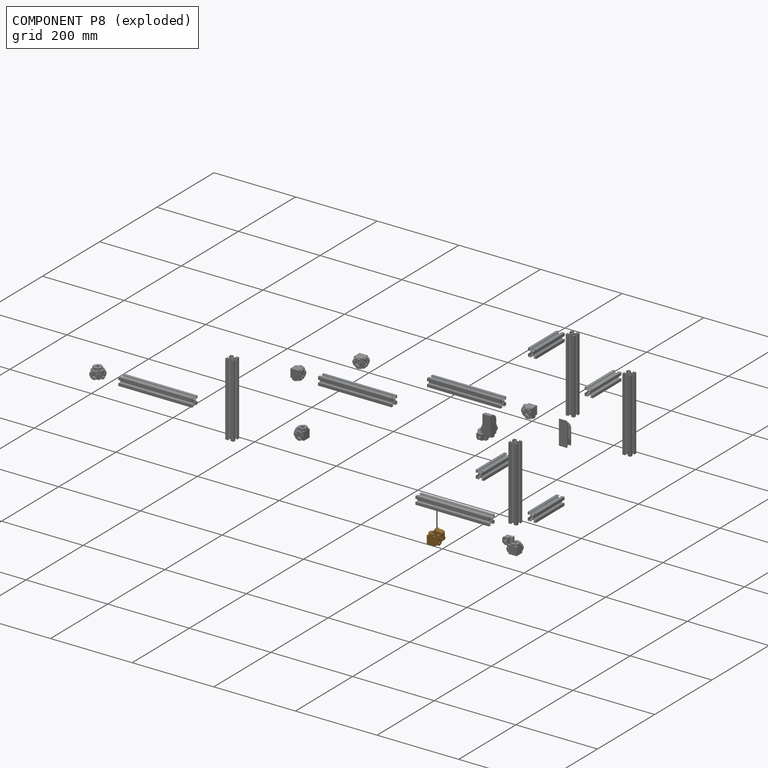
[diagram: component P8 — exploded]
COMPONENT P8 — geometry summary (no construction recipe available for this part):
  bounding box: 35.0 x 35.0 x 25.0 mm
  B-rep topology: 1 solid, 282 faces, 1408 edges
  volume: 14687 mm^3 (48% of its bounding box)
Held by: FASTENED mate "Fastened 14" to P12.
